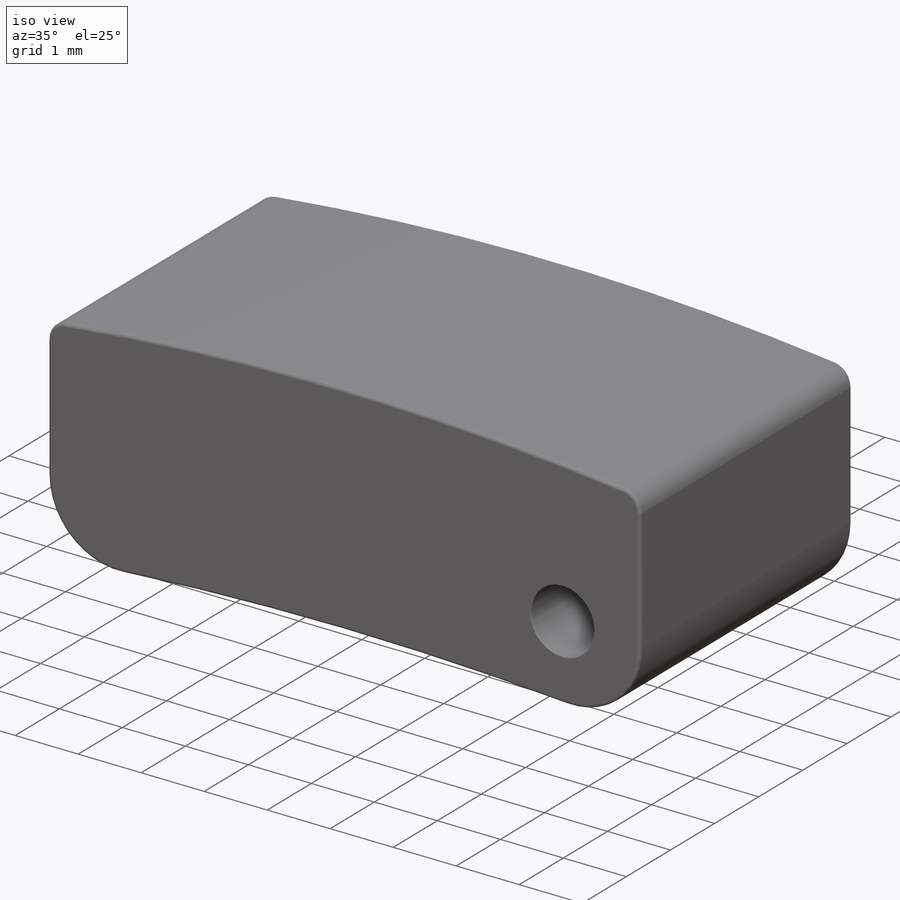
[diagram: iso view]
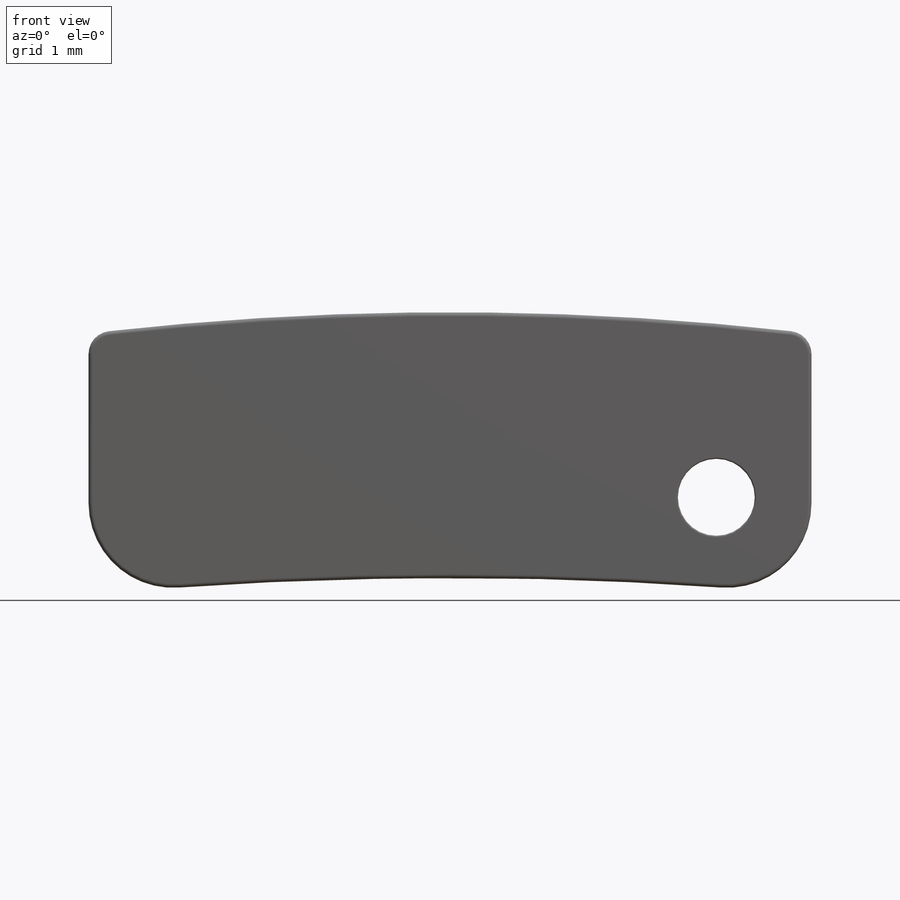
[diagram: front view]
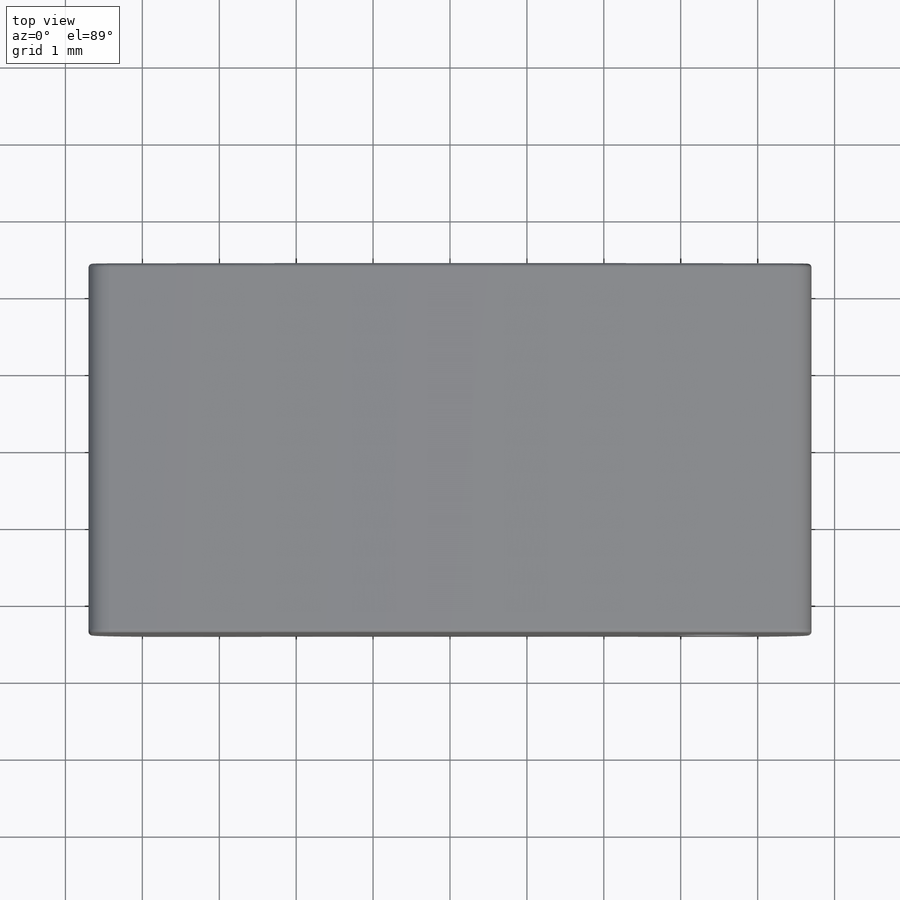
[diagram: top view]
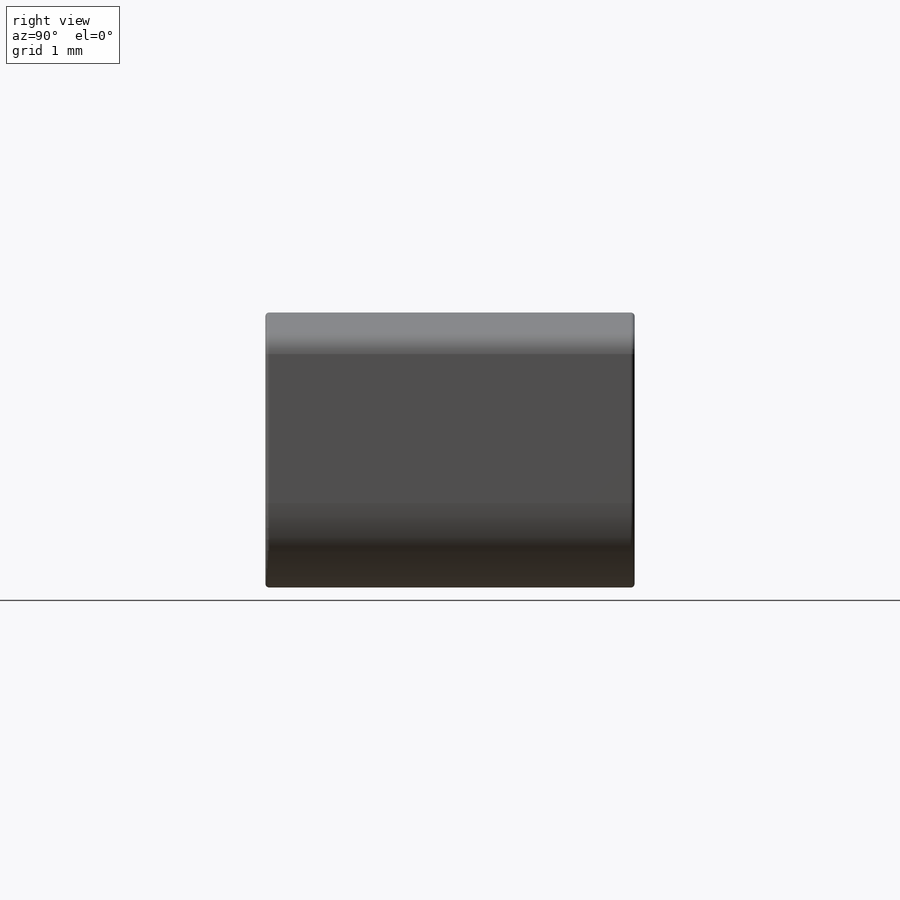
[diagram: right view]
SOLIDWORKS PART (.sldprt)
format: sldprt  version: not decoded by parser v0  size: 440,320 bytes
history: native  units: mm
features: sketch x7, fillet x5, cut_extrude x4, extrude x3, material x1, mirror x1 (+11 scaffold rows collapsed)
feature tree (32):
  scaffold x11  (default folders/planes/origin — collapsed)
  material  "Material <not specified>"
  sketch  "Sketch1"  dims[D1=9.4mm D2=3.7mm D3=1.85mm D4=4.7mm]
  extrude  "Boss-Extrude1"  Depth=4.8mm
  sketch  "Sketch2"  dims[D4=40.0mm D5=50.0mm D1=0.0mm D2=0.3mm D3=0.3mm]
  cut_extrude  "Cut-Extrude1"  Depth=4.8mm
  fillet  "Fillet1"  Radius=1.1mm
  fillet  "Fillet2"  Radius=0.3mm
  fillet  "Fillet3"  Radius=0.05mm
  sketch  "Sketch3"  dims[D1=1.0mm]
  cut_extrude  "Cut-Extrude2"  Depth=4.8mm
  fillet  "Fillet4"  Radius=0.02mm
  mirror  "Mirror1"
  sketch  "Sketch4"
  extrude  "Boss-Extrude2"  Depth=1mm
  sketch  "Sketch5"  dims[D1=0.0mm]
  cut_extrude  "Cut-Extrude3"  Depth=10mm
  sketch  "Sketch6"
  extrude  "Boss-Extrude3"  Depth=1mm
  sketch  "Sketch7"  dims[c1.D1=~0.862507mm c1.D2=0.8mm c1.D3=0.8mm c2.D1=4.0mm c2.D2=~0.813991mm c2.D3=1.5mm]
  cut_extrude  "Cut-Extrude4"  Depth=0.4mm
  fillet  "Fillet5"  Radius=0.05mm
decode coverage: 17 of 20 modeling features carry decoded parameters
note: ~ marks probable driven/reference dimensions
note: suppression state not decoded; provenance and decode notes live in map.json
